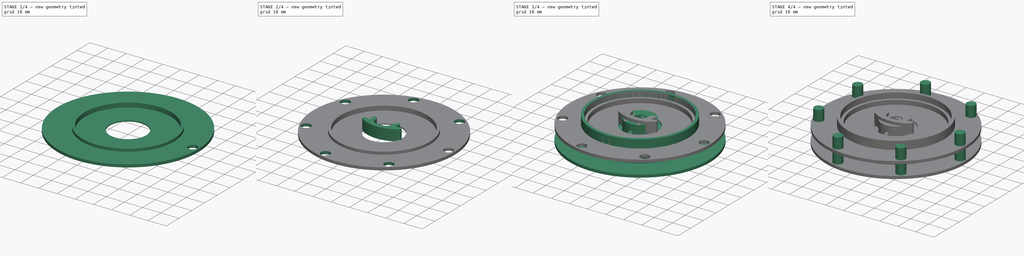
[diagram: build sequence overview — one tinted view per stage of 4, left to right]
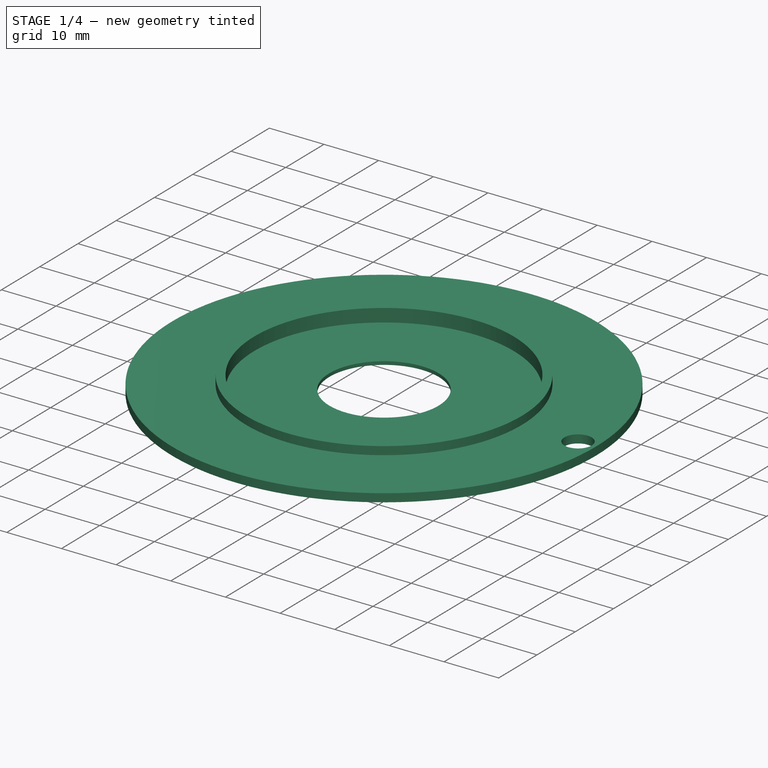
[diagram: stage 1 of 4 — iso view after this stage's code; geometry added in this stage tinted green]
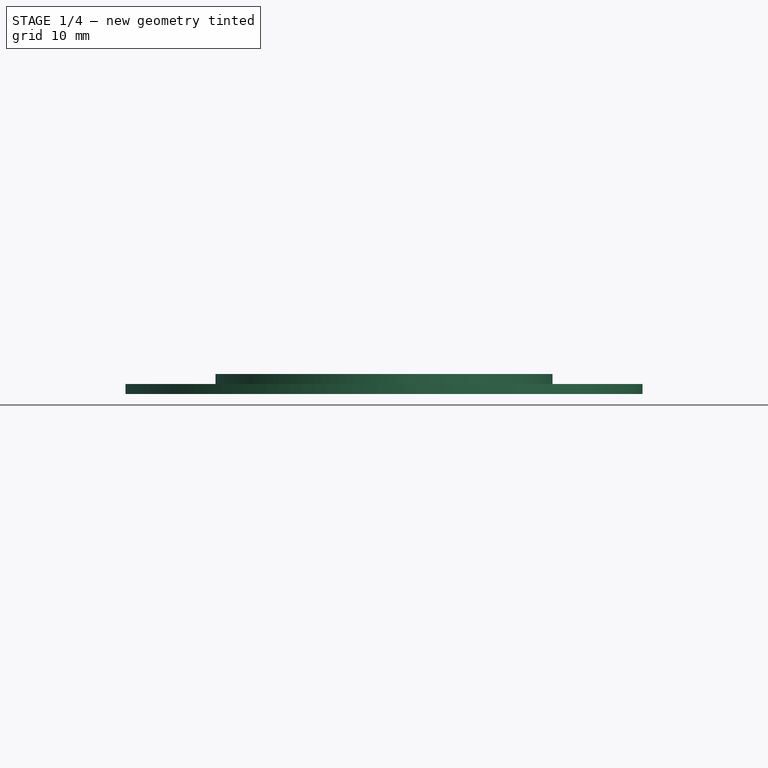
[diagram: stage 1 of 4 — front view after this stage's code; geometry added in this stage tinted green]
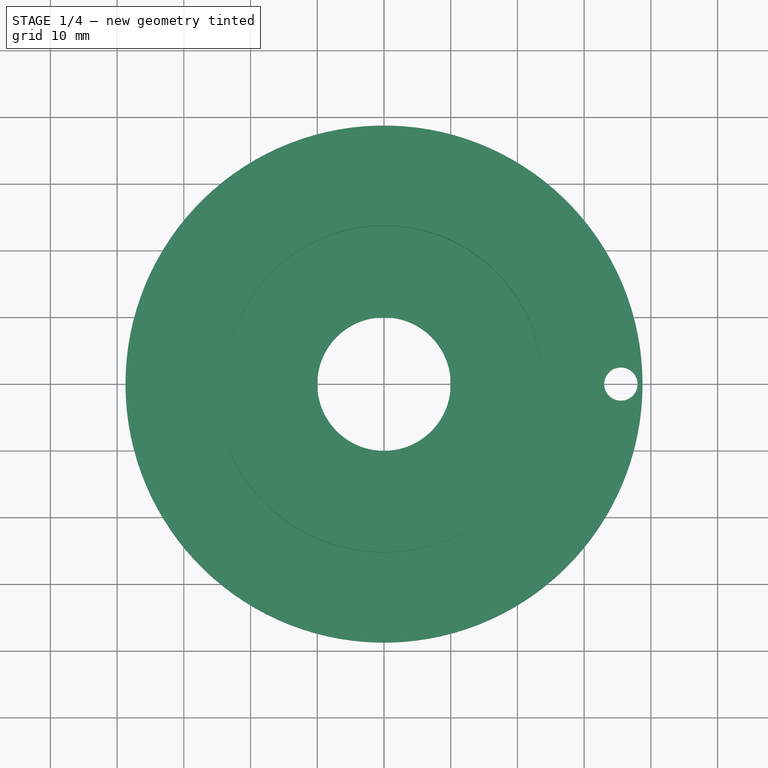
[diagram: stage 1 of 4 — top view after this stage's code; geometry added in this stage tinted green]
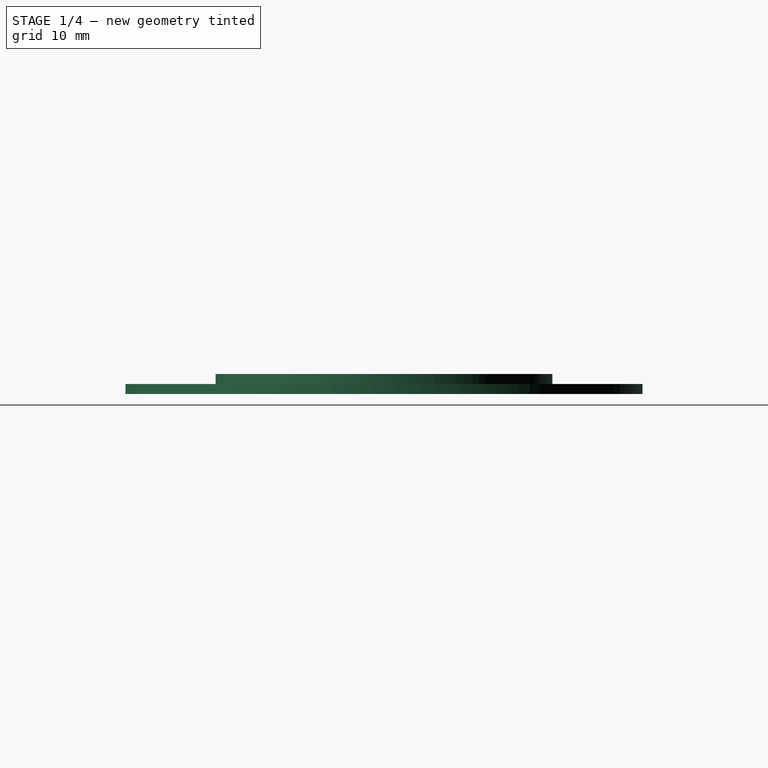
[diagram: stage 1 of 4 — right view after this stage's code; geometry added in this stage tinted green]
FCSTD DOCUMENT  (FreeCAD 0.20R27319 (Git))
Label: sprocket-dummy
License: All rights reserved
LicenseURL: http://en.wikipedia.org/wiki/All_rights_reserved
objects: Sketcher::SketchObject×7, PartDesign::Pad×3, PartDesign::Body×3, PartDesign::Revolution×2, PartDesign::Pocket×2, PartDesign::PolarPattern×2
note: 26 computed .brp shape members not serialized (recipe doc carries the construction recipe); baked Part::Feature solids carry a one-line shape summary decoded from their .brp

FEATURE [PartDesign::Body] Body  label="spacer"
  Group = -> [Sketch015,Pad002]
  Origin = -> Origin
  Tip = -> Pad002
FEATURE [Sketcher::SketchObject] Sketch016
  FullyConstrained = true
  MapMode = 5
  Placement = pos=(0,0,0) rot=(1,0,0;1.5708rad)
  Support = -> [XZ_Plane006]
  expr: Constraints[15] = Sketch006.Constraints.D / -2mm
  sketch-geometry (8):
    g0: LineSegment StartX=-10 StartY=0 StartZ=0 EndX=-10 EndY=0.6 EndZ=0
    g1: LineSegment StartX=-10 StartY=0.6 StartZ=0 EndX=-23.75 EndY=0.6 EndZ=0
    g2: LineSegment StartX=-25.25 StartY=3 StartZ=0 EndX=-25.25 EndY=1.5 EndZ=0
    g3: LineSegment StartX=-25.25 StartY=1.5 StartZ=0 EndX=-38.75 EndY=1.5 EndZ=0
    g4: LineSegment StartX=-38.75 StartY=1.5 StartZ=0 EndX=-38.75 EndY=0 EndZ=0
    g5: LineSegment StartX=-38.75 StartY=0 StartZ=0 EndX=-10 EndY=0 EndZ=0
    g6: LineSegment StartX=-25.25 StartY=3 StartZ=0 EndX=-23.75 EndY=3 EndZ=0
    g7: LineSegment StartX=-23.75 StartY=3 StartZ=0 EndX=-23.75 EndY=0.6 EndZ=0
  constraints (24):
    c: PointOnObject(g0,g-1)
    c: Vertical(g0)
    c: Coincident(g0,g1)
    c: Horizontal(g1)
    c: Vertical(g2)
    c: Coincident(g2,g3)
    c: Horizontal(g3)
    c: Coincident(g3,g4)
    c: Vertical(g4)
    c: Coincident(g4,g5)
    c: Coincident(g5,g0)
    c: Horizontal(g5)
    c: DistanceY(g4,g4) = 1.5
    c: DistanceY(g0,g0) = 0.6
    c: DistanceX(g3,g3) = 13.5
    c: DistanceX(g4) = -38.75
    c: Coincident(g2,g6)
    c: Horizontal(g6)
    c: Coincident(g6,g7)
    c: Coincident(g7,g1)
    c: Vertical(g7)
    c: Equal(g4,g2)
    c: Equal(g2,g6)
    c: DistanceX(g0) = -10
FEATURE [PartDesign::Revolution] Revolution
  Angle = 360
  Axis = (0,2e-16,1)
  Base = (0,0,0)
  Placement = pos=(0,0,0) rot=(1,0,0;1.5708rad)
  Profile = -> Sketch016
  ReferenceAxis = -> Sketch016 [V_Axis]
FEATURE [Sketcher::SketchObject] Sketch017
  FullyConstrained = true
  MapMode = 5
  Support = -> [XY_Plane006]
  expr: .Constraints.PC = Sketch014.Constraints[2]
  expr: Constraints[1] = Sketch014.Constraints[1]
  sketch-geometry (1):
    g0: Circle CenterX=35.5 CenterY=0 CenterZ=0 NormalX=0 NormalY=0 NormalZ=1 AngleXU=0 Radius=2.5
  constraints (3):
    c: PointOnObject(g0,g-1)
    c: Diameter(g0) = 5
    c: DistanceX(g0) = 35.5  'PC'
FEATURE [PartDesign::Pocket] Pocket
  BaseFeature = -> Revolution
  Direction = (0,0,-1)
  Length = 5
  Length2 = 5
  Midplane = true
  Placement = pos=(0,0,0) rot=(1,0,0;1.5708rad)
  Profile = -> Sketch017
  ReferenceAxis = -> Sketch017 [N_Axis]
  Type = 1
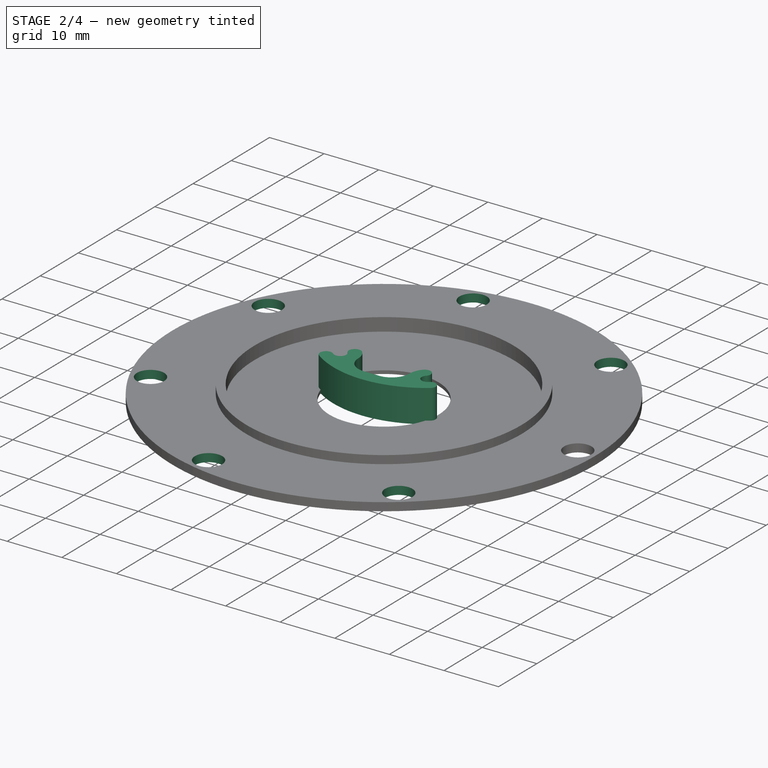
[diagram: stage 2 of 4 — iso view after this stage's code; geometry added in this stage tinted green]
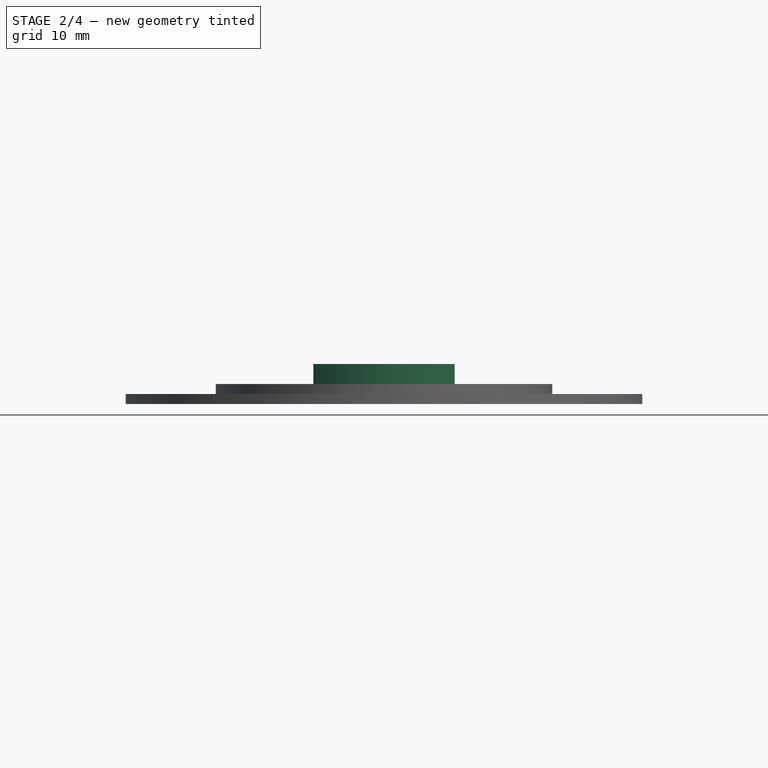
[diagram: stage 2 of 4 — front view after this stage's code; geometry added in this stage tinted green]
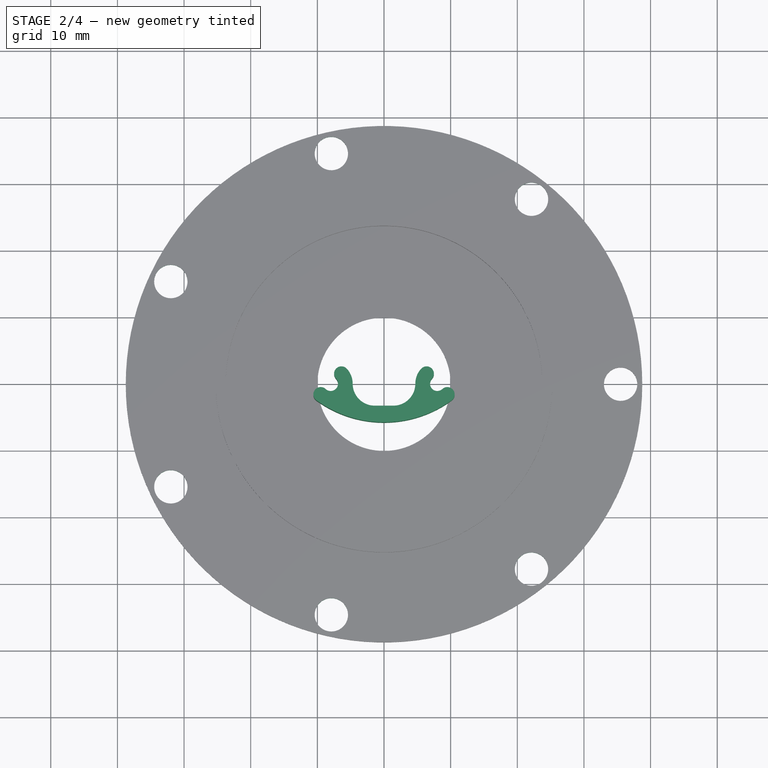
[diagram: stage 2 of 4 — top view after this stage's code; geometry added in this stage tinted green]
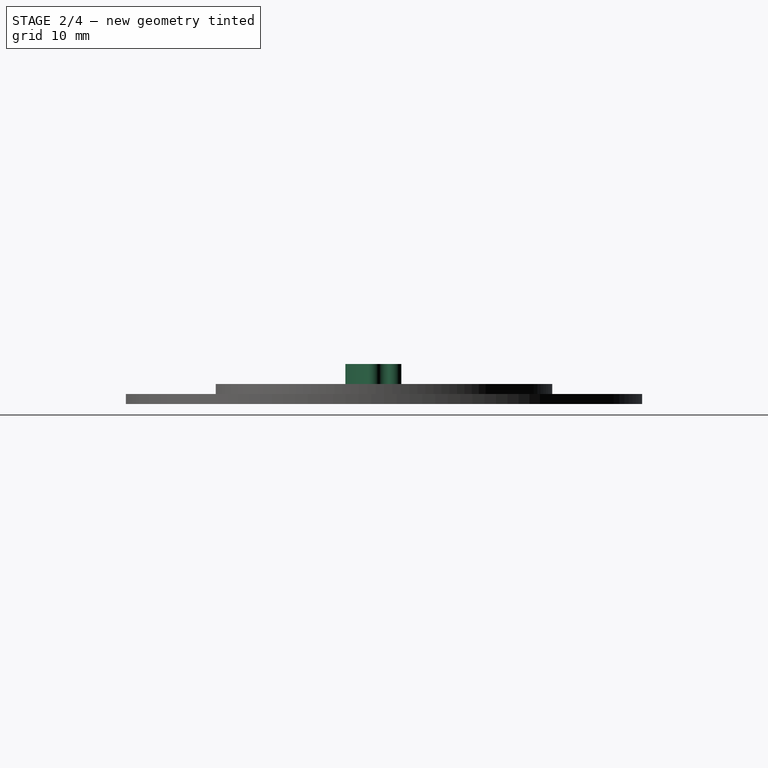
[diagram: stage 2 of 4 — right view after this stage's code; geometry added in this stage tinted green]
FEATURE [PartDesign::Body] Body005  label="seven-pegs"
  Group = -> [Sketch006,Revolution001,Sketch013,Sketch,Pad,Pocket003,Sketch014,Pad001,PolarPattern]
  Origin = -> Origin005
  Tip = -> PolarPattern
FEATURE [Sketcher::SketchObject] Sketch015
  FullyConstrained = true
  MapMode = 5
  Support = -> [XY_Plane]
  sketch-geometry (13):
    g0: ArcOfCircle CenterX=-8 CenterY=0 CenterZ=0 NormalX=0 NormalY=0 NormalZ=1 AngleXU=0 Radius=1.1 StartAngle=3.96214 EndAngle=7.03343
    g1: ArcOfCircle CenterX=8 CenterY=0 CenterZ=0 NormalX=0 NormalY=0 NormalZ=1 AngleXU=0 Radius=1.1 StartAngle=2.39135 EndAngle=5.46263
    g2: ArcOfCircle CenterX=-6.39065 CenterY=1.5 CenterZ=0 NormalX=0 NormalY=0 NormalZ=1 AngleXU=0 Radius=1.1 StartAngle=0.750245 EndAngle=3.89184
    g3: ArcOfCircle CenterX=6.39065 CenterY=1.5 CenterZ=0 NormalX=0 NormalY=0 NormalZ=1 AngleXU=0 Radius=1.1 StartAngle=5.53294 EndAngle=8.67453
    g4: ArcOfCircle CenterX=8 CenterY=0 CenterZ=0 NormalX=0 NormalY=0 NormalZ=1 AngleXU=0 Radius=3.3 StartAngle=2.39135 EndAngle=3.14159
    g5: ArcOfCircle CenterX=-8 CenterY=0 CenterZ=0 NormalX=0 NormalY=0 NormalZ=1 AngleXU=0 Radius=3.3 StartAngle=0 EndAngle=0.750245
    g6: ArcOfCircle CenterX=-1.4 CenterY=0 CenterZ=0 NormalX=0 NormalY=0 NormalZ=1 AngleXU=0 Radius=3.3 StartAngle=3.14159 EndAngle=4.71239
    g7: ArcOfCircle CenterX=1.4 CenterY=0 CenterZ=0 NormalX=0 NormalY=0 NormalZ=1 AngleXU=0 Radius=3.3 StartAngle=4.71239 EndAngle=6.28319
    g8: LineSegment StartX=-1.4 StartY=-3.3 StartZ=0 EndX=1.4 EndY=-3.3 EndZ=0
    g9: ArcOfCircle CenterX=-9.5 CenterY=-1.60935 CenterZ=0 NormalX=0 NormalY=0 NormalZ=1 AngleXU=0 Radius=1.1 StartAngle=0.820551 EndAngle=4.08332
    g10: ArcOfCircle CenterX=9.5 CenterY=-1.60935 CenterZ=0 NormalX=0 NormalY=0 NormalZ=1 AngleXU=0 Radius=1.1 StartAngle=5.34145 EndAngle=8.60423
    g11: ArcOfCircle CenterX=0 CenterY=11.4458 CenterZ=0 NormalX=0 NormalY=0 NormalZ=1 AngleXU=0 Radius=17.2458 StartAngle=4.08332 EndAngle=5.34145
    g12: GeomPoint X=0 Y=-5.8 Z=0
  constraints (35):
    c: PointOnObject(g0,g-1)
    c: Radius(g0) = 1.1
    c: Equal(g0,g1)
    c: Symmetric(g1,g0,g-2)
    c: DistanceX(g0,g1) = 16
    c: Tangent(g2,g0) = 1.5708
    c: Tangent(g3,g1) = 1.5708
    c: Symmetric(g3,g2,g-2)
    c: Equal(g0,g2)
    c: Coincident(g4,g1)
    c: PointOnObject(g4,g-1)
    c: Coincident(g5,g0)
    c: PointOnObject(g5,g-1)
    c: Tangent(g5,g2) = -1.5708
    c: DistanceY(g3) = 1.5
    c: Tangent(g4,g3) = -1.5708
    c: PointOnObject(g6,g-1)
    c: Coincident(g6,g5)
    c: PointOnObject(g7,g-1)
    c: Coincident(g7,g4)
    c: Equal(g6,g5)
    c: Tangent(g8,g6) = -1.5708
    c: Equal(g7,g4)
    c: Tangent(g8,g7) = -1.5708
    c: PointOnObject(g11,g-2)
    c: Tangent(g11,g10) = -1.5708
    c: Tangent(g11,g9) = -1.5708
    c: Equal(g9,g0)
    c: PointOnObject(g12,g11)
    c: PointOnObject(g12,g-2)
    c: DistanceY(g12,g7) = 2.5
    c: Tangent(g9,g0) = 1.5708
    c: Tangent(g1,g10) = 1.5708
    c: Equal(g10,g1)
    c: DistanceX(g9,g10) = 19
FEATURE [PartDesign::Pad] Pad002
  Direction = (0,0,1)
  Length = 6
  Length2 = 10
  Profile = -> Sketch015
  ReferenceAxis = -> Sketch015 [N_Axis]
  Type = 0
FEATURE [PartDesign::PolarPattern] PolarPattern001
  Angle = 360
  Axis = -> Sketch017 [N_Axis]
  BaseFeature = -> Pocket
  Occurrences = 7
  Originals = -> [Pocket]
  Overlap = 0
  Placement = pos=(0,0,0) rot=(1,0,0;1.5708rad)
FEATURE [PartDesign::Body] Body006  label="cover"
  Group = -> [Sketch016,Revolution,Sketch017,Pocket,PolarPattern001]
  Origin = -> Origin006
  Placement = pos=(0,0,10) rot=(0,0,1;0rad)
  Tip = -> PolarPattern001
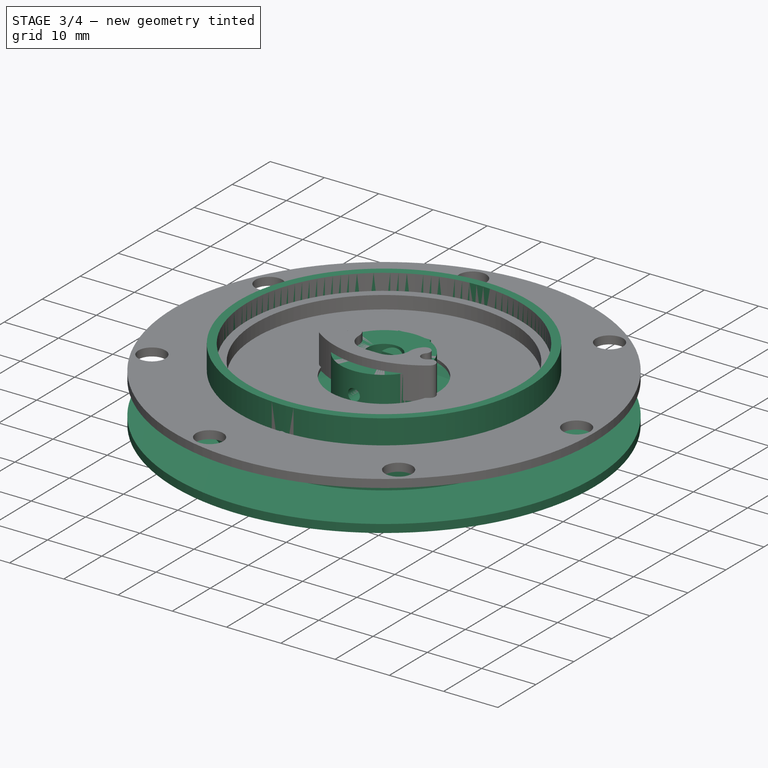
[diagram: stage 3 of 4 — iso view after this stage's code; geometry added in this stage tinted green]
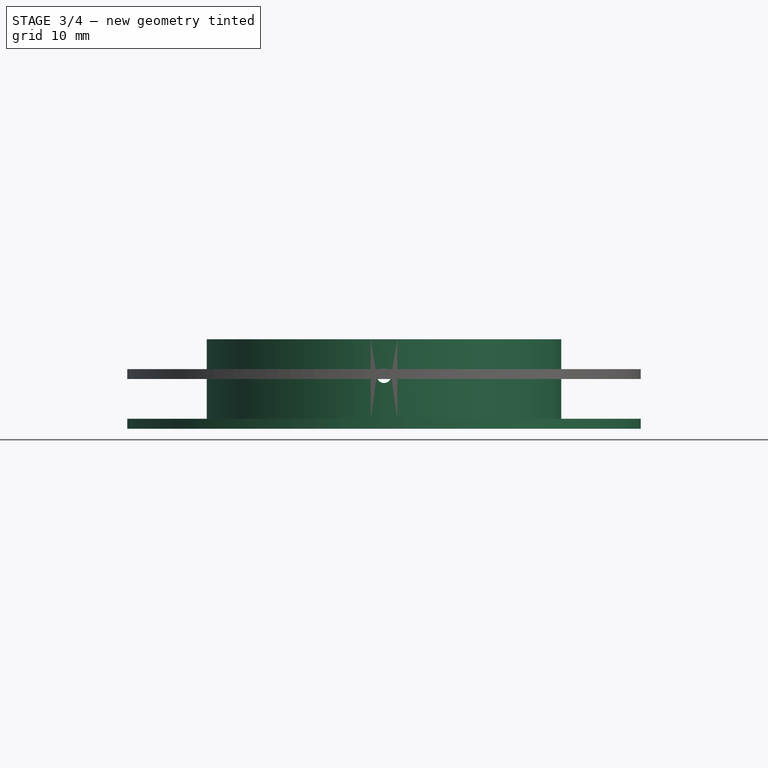
[diagram: stage 3 of 4 — front view after this stage's code; geometry added in this stage tinted green]
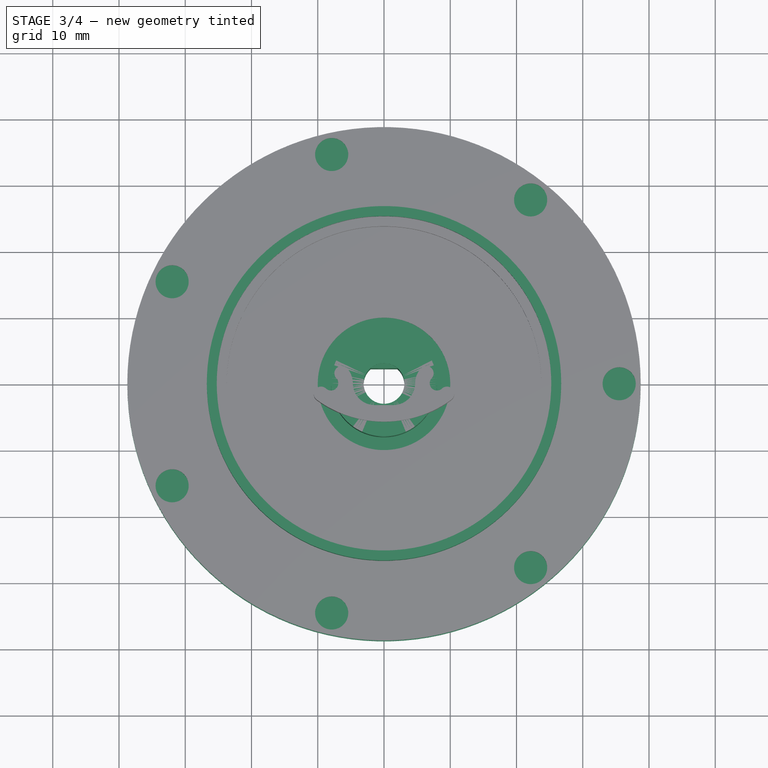
[diagram: stage 3 of 4 — top view after this stage's code; geometry added in this stage tinted green]
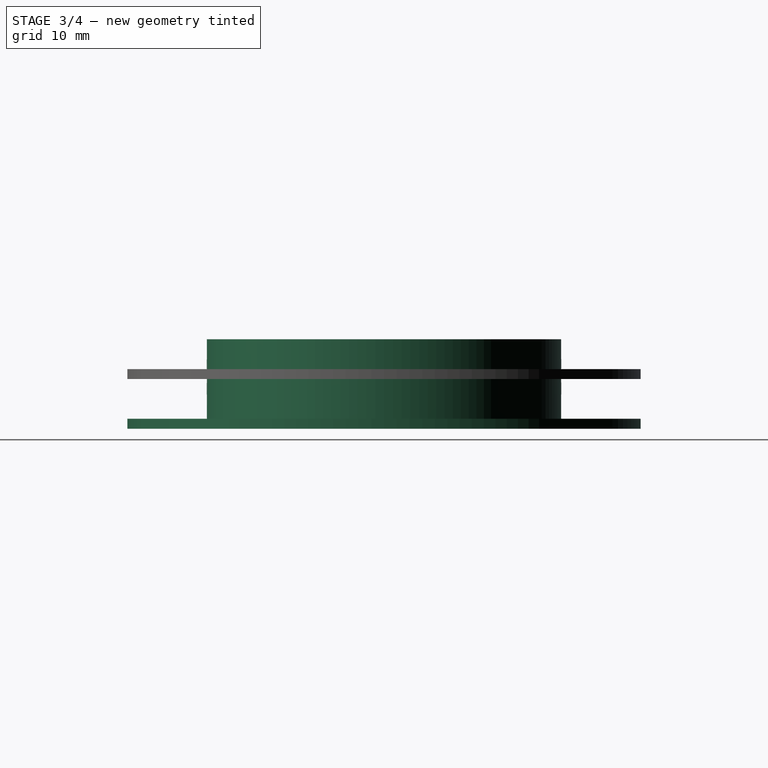
[diagram: stage 3 of 4 — right view after this stage's code; geometry added in this stage tinted green]
FEATURE [Sketcher::SketchObject] Sketch006  label="bottom"
  FullyConstrained = false
  MapMode = 5
  Placement = pos=(0,0,0) rot=(1,0,0;1.5708rad)
  Support = -> [XZ_Plane005]
  sketch-geometry (16):
    g0: LineSegment StartX=-8 StartY=4.5 StartZ=0 EndX=-3.075 EndY=4.5 EndZ=0
    g1: GeomPoint X=8 Y=4.5 Z=0
    g2: GeomPoint X=3.075 Y=-7.5 Z=0
    g3: LineSegment StartX=-3.075 StartY=-7.5 StartZ=0 EndX=-3.075 EndY=4.5 EndZ=0
    g4: LineSegment StartX=-38.75 StartY=-7.5 StartZ=0 EndX=-3.075 EndY=-7.5 EndZ=0
    g5: LineSegment StartX=-8 StartY=-4.5 StartZ=0 EndX=-8 EndY=4.5 EndZ=0
    g6: LineSegment StartX=-38.75 StartY=-6 StartZ=0 EndX=-38.75 EndY=-7.5 EndZ=0
    g7: LineSegment StartX=-26.75 StartY=-6 StartZ=0 EndX=-38.75 EndY=-6 EndZ=0
    g8: LineSegment StartX=-26.75 StartY=6 StartZ=0 EndX=-26.75 EndY=-6 EndZ=0
    g9: GeomPoint X=31 Y=6 Z=0
    g10: LineSegment StartX=-26.75 StartY=6 StartZ=0 EndX=-25.25 EndY=6 EndZ=0
    g11: LineSegment StartX=-25.25 StartY=6 StartZ=0 EndX=-25.25 EndY=-6 EndZ=0
    g12: GeomPoint X=38.75 Y=-7.5 Z=0
    g13: LineSegment StartX=-13.8156 StartY=-4.5 StartZ=0 EndX=-8 EndY=-4.5 EndZ=0
    g14: LineSegment StartX=-25.25 StartY=-6 StartZ=0 EndX=-19.4344 EndY=-6 EndZ=0
    g15: LineSegment StartX=-19.4344 StartY=-6 StartZ=0 EndX=-13.8156 EndY=-4.5 EndZ=0
  constraints (40):
    c: Coincident(g5,g0)
    c: Horizontal(g0)
    c: Symmetric(g5,g1,g-2)
    c: DistanceX(g5,g1) = 16
    c: Coincident(g3,g0)
    c: Vertical(g3)
    c: DistanceX(g3,g2) = 6.15
    c: DistanceY(g3,g3) = 12
    c: Coincident(g6,g4)
    c: Horizontal(g4)
    c: DistanceY(g5,g5) = 9
    c: Vertical(g5)
    c: Coincident(g7,g6)
    c: Vertical(g6)
    c: Coincident(g8,g7)
    c: Horizontal(g7)
    c: DistanceY(g8,g8) = 12
    c: DistanceX(g7,g7) = 12
    c: Symmetric(g7,g8,g-1)
    c: DistanceY(g0) = 4.5  'height'
    c: Symmetric(g3,g2,g-2)
    c: Coincident(g3,g4)
    c: Coincident(g8,g10)
    c: Horizontal(g10)
    c: Coincident(g10,g11)
    c: Vertical(g11)
    c: Coincident(g11,g14)
    c: Coincident(g13,g5)
    c: Horizontal(g7,g11)
    c: Equal(g6,g10)
    c: Symmetric(g12,g4,g-2)
    c: DistanceX(g4,g12) = 77.5  'D'
    c: DistanceY(g6,g6) = 1.5
    c: DistanceX(g10,g10) = 1.5
    c: Coincident(g15,g13)
    c: Horizontal(g13)
    c: Coincident(g14,g15)
    c: Horizontal(g14)
    c: Equal(g14,g15)
    c: Equal(g15,g13)
FEATURE [PartDesign::Revolution] Revolution001
  Angle = 360
  Axis = (0,-2e-16,1)
  Base = (0,0,0)
  Placement = pos=(0,0,0) rot=(1,0,0;1.5708rad)
  Profile = -> Sketch006
  ReferenceAxis = -> Sketch006 [V_Axis]
FEATURE [Sketcher::SketchObject] Sketch013
  FullyConstrained = true
  MapMode = 5
  Placement = pos=(0,0,0) rot=(1,0,0;1.5708rad)
  Support = -> [XZ_Plane005]
  sketch-geometry (1):
    g0: Circle CenterX=0 CenterY=0.5 CenterZ=0 NormalX=0 NormalY=0 NormalZ=1 AngleXU=0 Radius=1.1
  constraints (3):
    c: Diameter(g0) = 2.2
    c: PointOnObject(g0,g-2)
    c: DistanceY(g0) = 0.5
FEATURE [Sketcher::SketchObject] Sketch
  FullyConstrained = true
  MapMode = 5
  Placement = pos=(0,0,0) rot=(0.57735,0.57735,0.57735;2.0944rad)
  Support = -> [YZ_Plane005]
  expr: Constraints[8] = Sketch006.Constraints.height - 1.2mm
  sketch-geometry (6):
    g0: LineSegment StartX=2.3 StartY=-6.3 StartZ=0 EndX=2.3 EndY=3.3 EndZ=0
    g1: LineSegment StartX=2.3 StartY=3.3 StartZ=0 EndX=3.3 EndY=4.3 EndZ=0
    g2: LineSegment StartX=3.3 StartY=-7.3 StartZ=0 EndX=2.3 EndY=-6.3 EndZ=0
    g3: LineSegment StartX=3.3 StartY=4.3 StartZ=0 EndX=8.1 EndY=4.3 EndZ=0
    g4: LineSegment StartX=8.1 StartY=4.3 StartZ=0 EndX=8.1 EndY=2.3 EndZ=0
    g5: LineSegment StartX=8.1 StartY=2.3 StartZ=0 EndX=3.3 EndY=-7.3 EndZ=0
  constraints (18):
    c: Vertical(g0)
    c: Coincident(g0,g1)
    c: Coincident(g1,g3)
    c: Coincident(g5,g2)
    c: Coincident(g2,g0)
    c: Angle(g1) = 0.785398
    c: DistanceX(g0) = 2.3
    c: DistanceX(g2,g2) = 1
    c: DistanceY(g0) = 3.3
    c: DistanceY(g0,g0) = 9.6
    c: Perpendicular(g1,g2)
    c: Coincident(g3,g4)
    c: Coincident(g4,g5)
    c: Horizontal(g3)
    c: Vertical(g4)
    c: Vertical(g1,g2)
    c: DistanceX(g3,g3) = 4.8
    c: DistanceY(g4,g4) = 2
FEATURE [PartDesign::Pad] Pad  label="D-shape"
  BaseFeature = -> Revolution001
  Direction = (1,-2e-16,3e-16)
  Length = 6
  Length2 = 10
  Midplane = true
  Placement = pos=(0,0,0) rot=(1,0,0;1.5708rad)
  Profile = -> Sketch
  ReferenceAxis = -> Sketch [N_Axis]
  Type = 0
FEATURE [PartDesign::Pocket] Pocket003  label="pin-hole"
  BaseFeature = -> Pad
  Direction = (0,1,2e-16)
  Length = 5
  Length2 = 100
  Midplane = true
  Placement = pos=(0,0,0) rot=(1,0,0;1.5708rad)
  Profile = -> Sketch013
  Type = 1
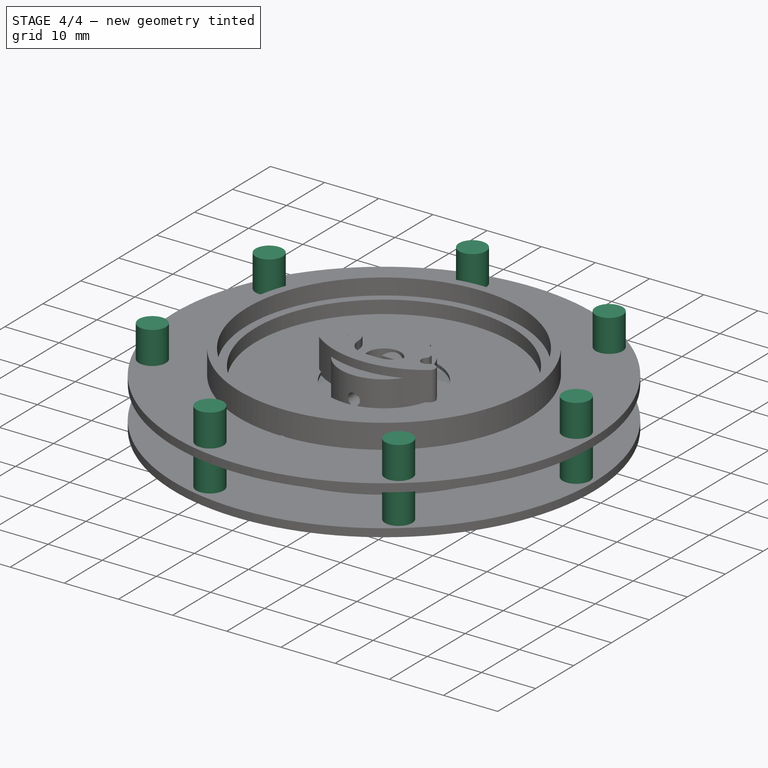
[diagram: stage 4 of 4 — iso view after this stage's code; geometry added in this stage tinted green]
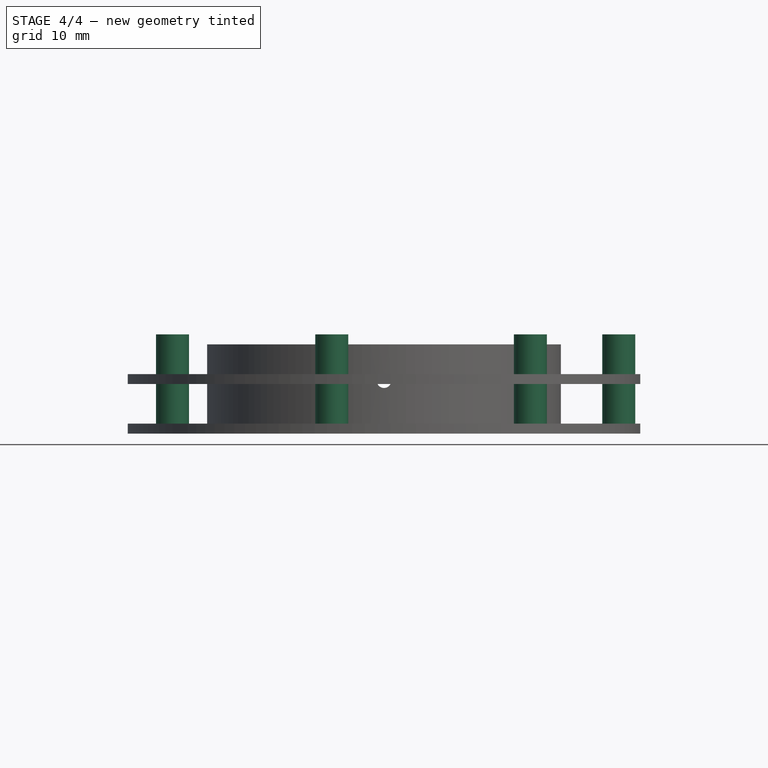
[diagram: stage 4 of 4 — front view after this stage's code; geometry added in this stage tinted green]
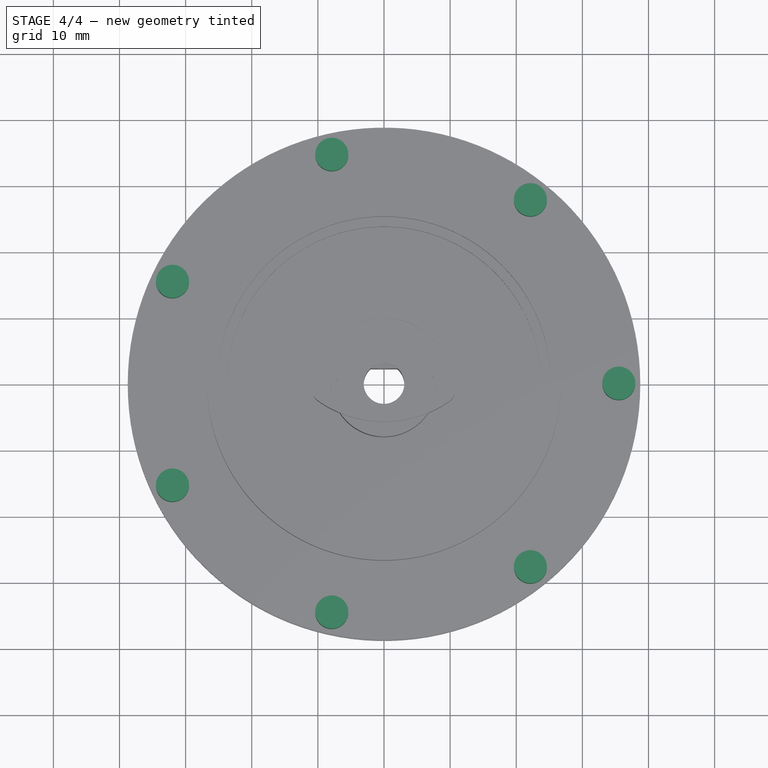
[diagram: stage 4 of 4 — top view after this stage's code; geometry added in this stage tinted green]
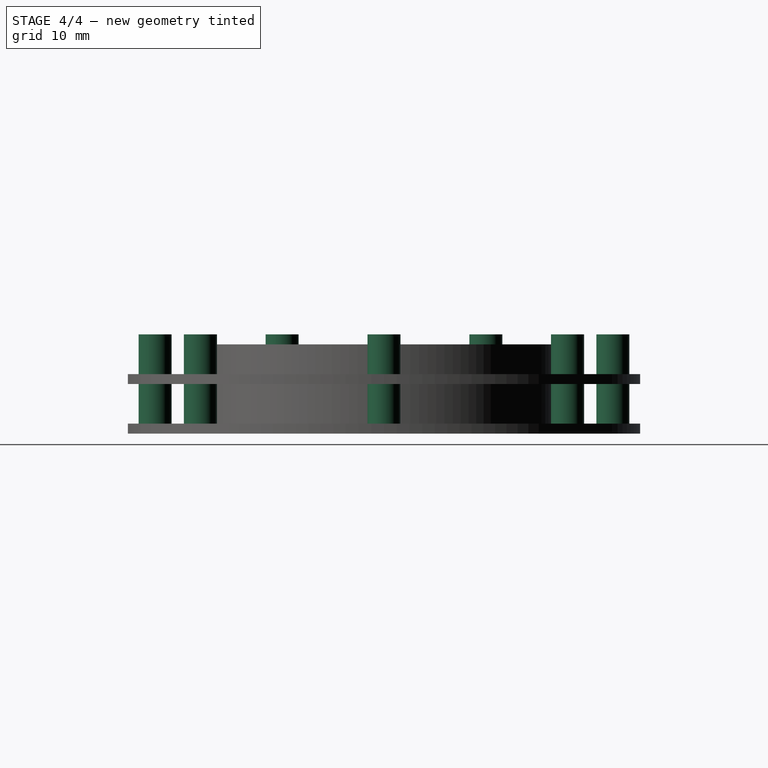
[diagram: stage 4 of 4 — right view after this stage's code; geometry added in this stage tinted green]
FEATURE [Sketcher::SketchObject] Sketch014  label="Peg"
  FullyConstrained = true
  MapMode = 5
  Support = -> [XY_Plane005]
  expr: .Constraints.PC = Sketch006.Constraints.D / 2 - 3.25mm
  sketch-geometry (1):
    g0: Circle CenterX=35.5 CenterY=0 CenterZ=0 NormalX=0 NormalY=0 NormalZ=1 AngleXU=0 Radius=2.5
  constraints (3):
    c: PointOnObject(g0,g-1)
    c: Diameter(g0) = 5
    c: DistanceX(g0) = 35.5  'PC'
FEATURE [PartDesign::Pad] Pad001  label="peg"
  BaseFeature = -> Pocket003
  Direction = (0,0,1)
  Length = 15
  Length2 = 10
  Midplane = true
  Placement = pos=(0,0,0) rot=(1,0,0;1.5708rad)
  Profile = -> Sketch014
  ReferenceAxis = -> Sketch014 [N_Axis]
  Type = 0
FEATURE [PartDesign::PolarPattern] PolarPattern
  Angle = 360
  Axis = -> Sketch014 [N_Axis]
  BaseFeature = -> Pad001
  Occurrences = 7
  Originals = -> [Pad001]
  Overlap = 0
  Placement = pos=(0,0,0) rot=(1,0,0;1.5708rad)
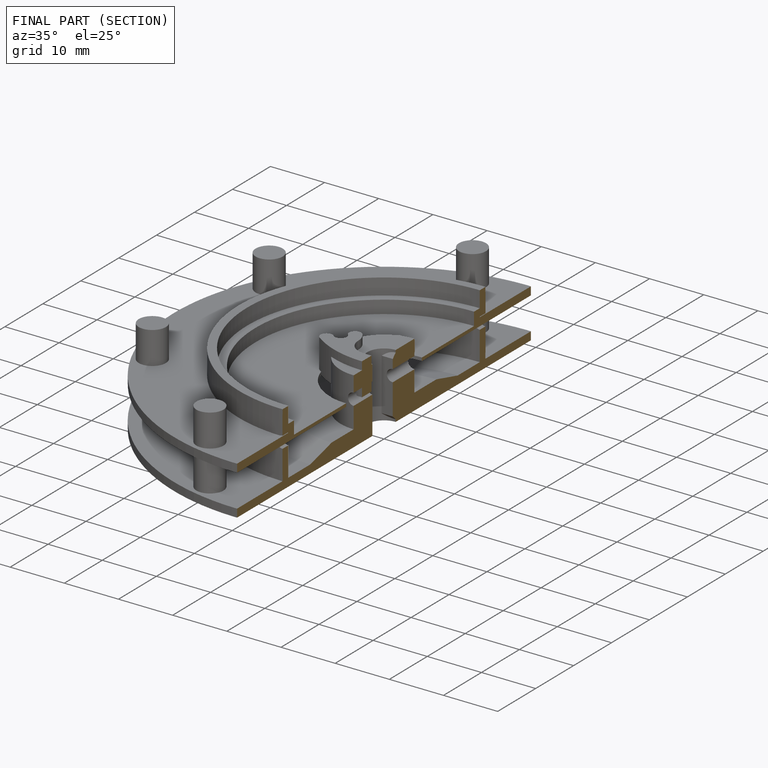
[diagram: finished part — half-section view (interior)]
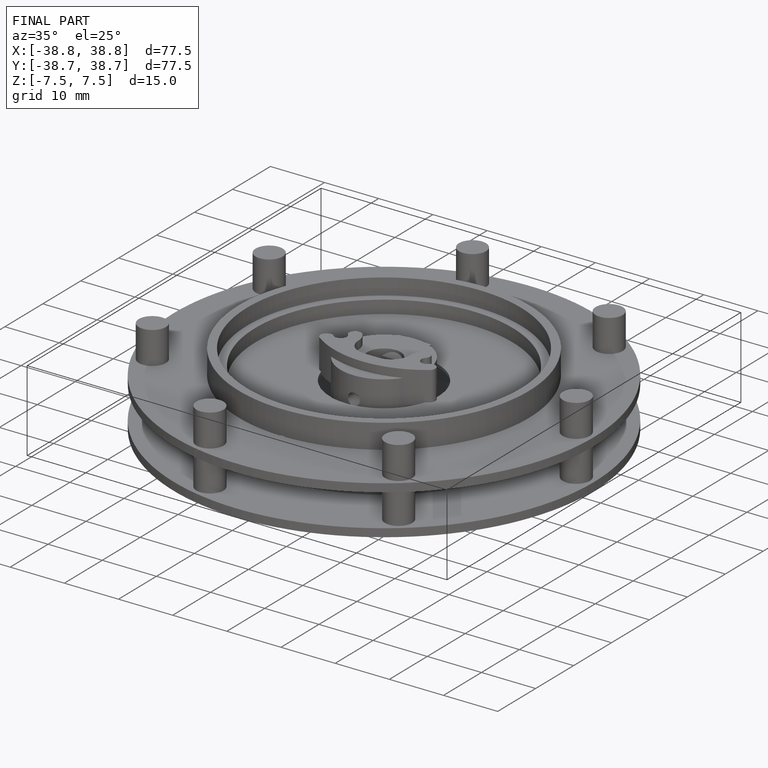
[diagram: finished part — iso view with bounding-box wireframe]
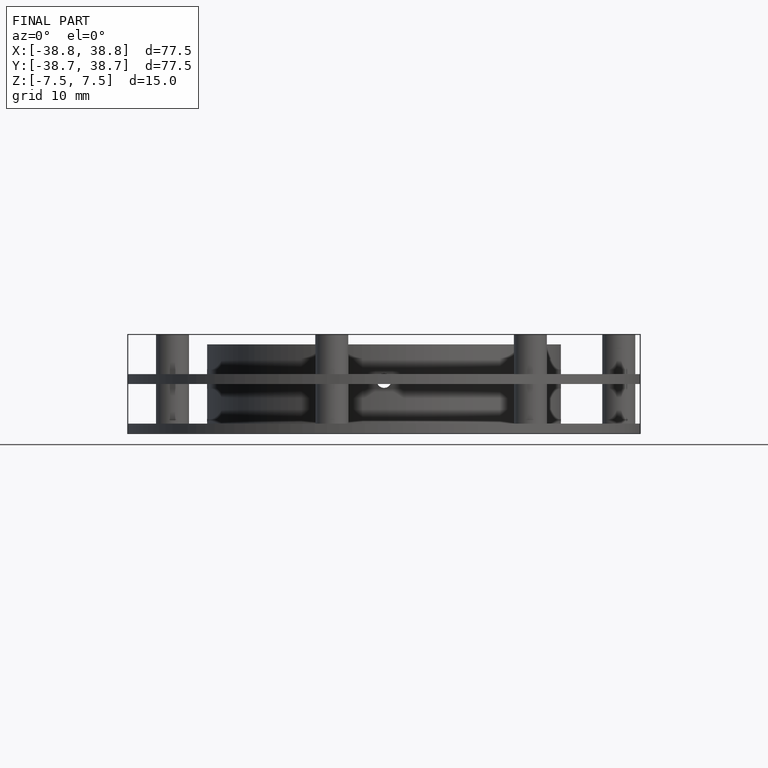
[diagram: finished part — front view with bounding-box wireframe]
